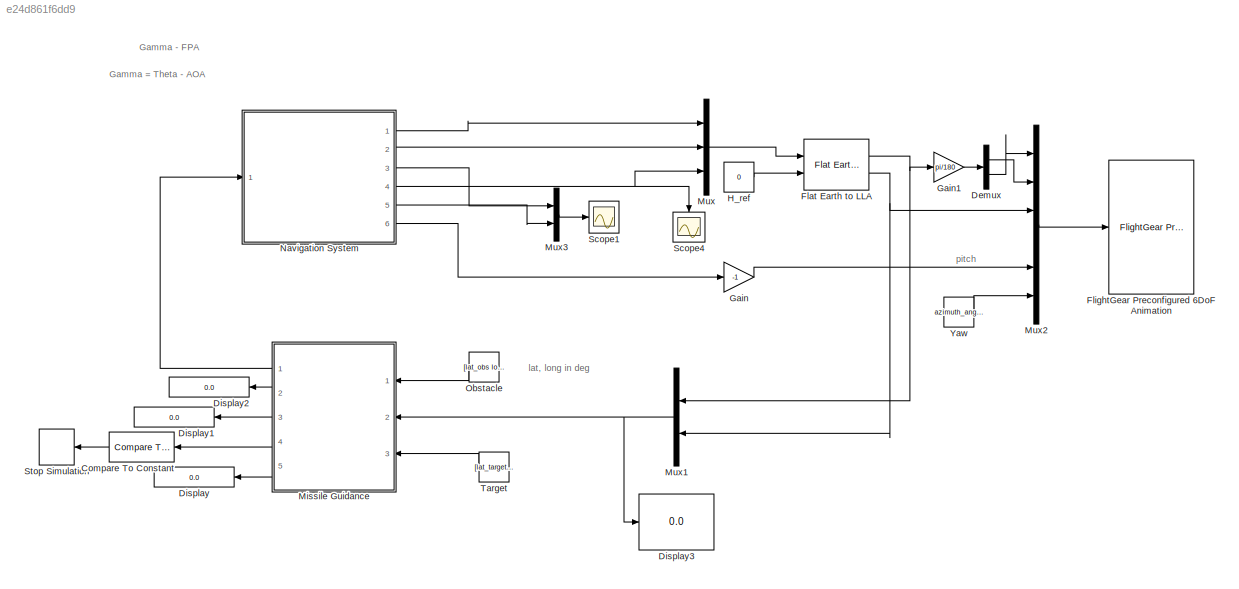
MODEL slx_e24d861f6dd9
KIND model
CONFIG AbsTol = auto
CONFIG EnableMultiTasking = off
CONFIG FixedStep = auto
CONFIG MaxStep = auto
CONFIG MinStep = auto
CONFIG RelTol = 1e-3
CONFIG SampleTimeConstraint = Unconstrained
CONFIG SolverName = VariableStepAuto
CONFIG StartTime = 0.0
CONFIG StopTime = 100
BLOCK [Reference] Compare To Constant  REF=simulink/Logic and Bit
Operations/Compare
To Constant
  NameLocation = top
  Ports = [1, 1]
  SourceBlock = simulink/Logic and Bit\nOperations/Compare\nTo Constant
  SourceProductBaseCode = SL
  SourceType = Compare To Constant
BLOCK [Demux] Demux
  Outputs = 2
  Ports = [1, 2]
BLOCK [Display] Display
  Decimation = 1
  NameLocation = top
  Ports = [1]
BLOCK [Display] Display1
  Decimation = 1
  NameLocation = top
  Ports = [1]
BLOCK [Display] Display2
  Decimation = 1
  NameLocation = top
  Ports = [1]
BLOCK [Display] Display3
  Decimation = 1
  Ports = [1]
BLOCK [Reference] Flat Earth to LLA  REF=aerolibtransform2/Flat Earth to LLA
  Ports = [2, 2]
  SourceBlock = aerolibtransform2/Flat Earth to LLA
  SourceProductBaseCode = AE
  SourceType = Flat Earth to LLA
BLOCK [Reference] FlightGear Preconfigured 6DoF Animation  REF=aerolibfltsims/FlightGear
Preconfigured
6DoF Animation
  Ports = [1]
  SourceBlock = aerolibfltsims/FlightGear\nPreconfigured\n6DoF Animation
  SourceProductBaseCode = AE
  SourceType = FlightGearQuick6DoFAnimation
BLOCK [Gain] Gain
  Gain = -1
BLOCK [Gain] Gain1
  Gain = pi/180
BLOCK [Constant] H_ref
  Value = 0
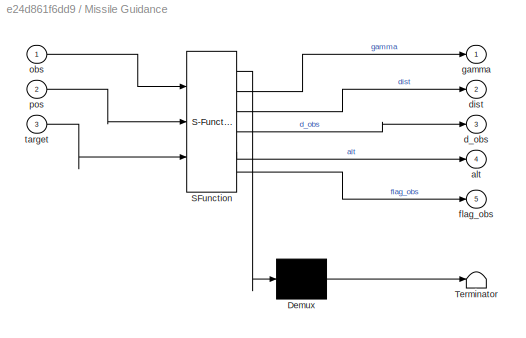
BLOCK [SubSystem] Missile Guidance
  ErrorFcn = Stateflow.Translate.translate
  PermitHierarchicalResolution = ExplicitOnly
  Ports = [3, 5]
  RequestExecContextInheritance = off
  SFBlockType = MATLAB Function
  TreatAsAtomicUnit = on
BLOCK [Demux] Missile Guidance/ Demux 
  Outputs = 1
  Ports = [1, 1]
BLOCK [S-Function] Missile Guidance/ SFunction 
  EnableBusSupport = on
  FunctionName = sf_sfun
  PortCounts = [3 6]
  Ports = [3, 6]
  SFcnIsStateOwnerBlock = off
  SFunctionDeploymentMode = off
  Tag = Stateflow S-Function 2
BLOCK [Terminator] Missile Guidance/ Terminator 
BLOCK [Outport] Missile Guidance/alt
  Port = 4
BLOCK [Outport] Missile Guidance/d_obs
  Port = 3
BLOCK [Outport] Missile Guidance/dist
  Port = 2
BLOCK [Outport] Missile Guidance/flag_obs
  Port = 5
BLOCK [Outport] Missile Guidance/gamma
BLOCK [Inport] Missile Guidance/obs
BLOCK [Inport] Missile Guidance/pos
  Port = 2
BLOCK [Inport] Missile Guidance/target
  Port = 3
BLOCK [Mux] Mux
  DisplayOption = bar
  Inputs = 3
  Ports = [3, 1]
BLOCK [Mux] Mux1
  DisplayOption = bar
  Inputs = 2
  NameLocation = top
  Ports = [2, 1]
BLOCK [Mux] Mux2
  DisplayOption = bar
  Inputs = 6
  Ports = [6, 1]
BLOCK [Mux] Mux3
  DisplayOption = bar
  Inputs = 2
  Ports = [2, 1]
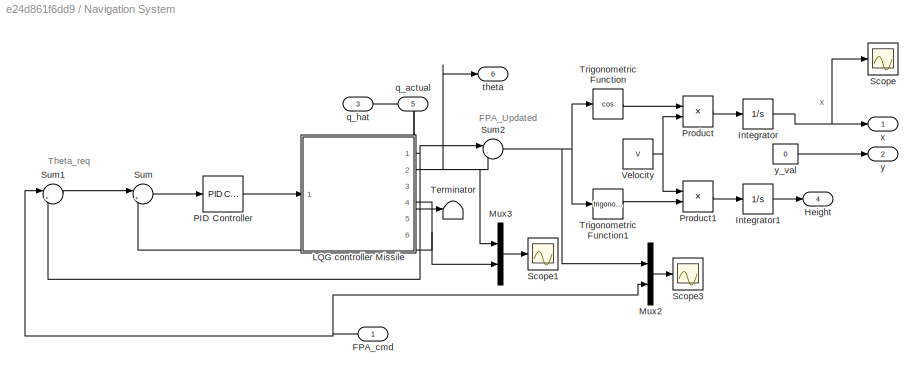
BLOCK [SubSystem] Navigation System
  Ports = [1, 6]
  RequestExecContextInheritance = off
BLOCK [Inport] Navigation System/FPA_cmd
BLOCK [Outport] Navigation System/Height
  Port = 4
BLOCK [Integrator] Navigation System/Integrator
  Ports = [1, 1]
BLOCK [Integrator] Navigation System/Integrator1
  InitialCondition = -elev_init
  Ports = [1, 1]
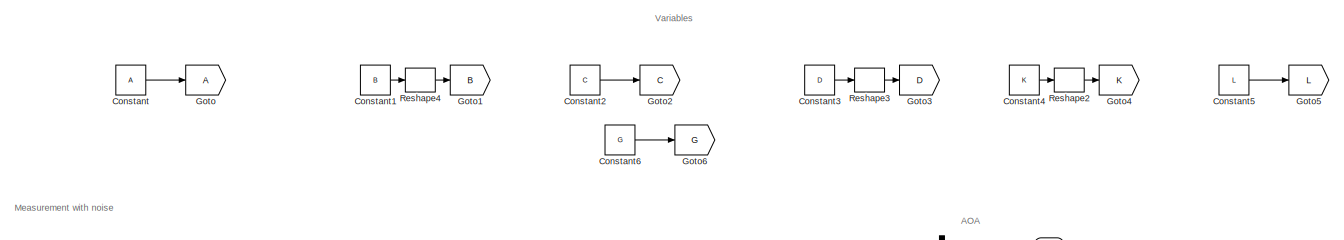
[diagram: Navigation System/LQG controller Missile - part 1/4, full width, top band]
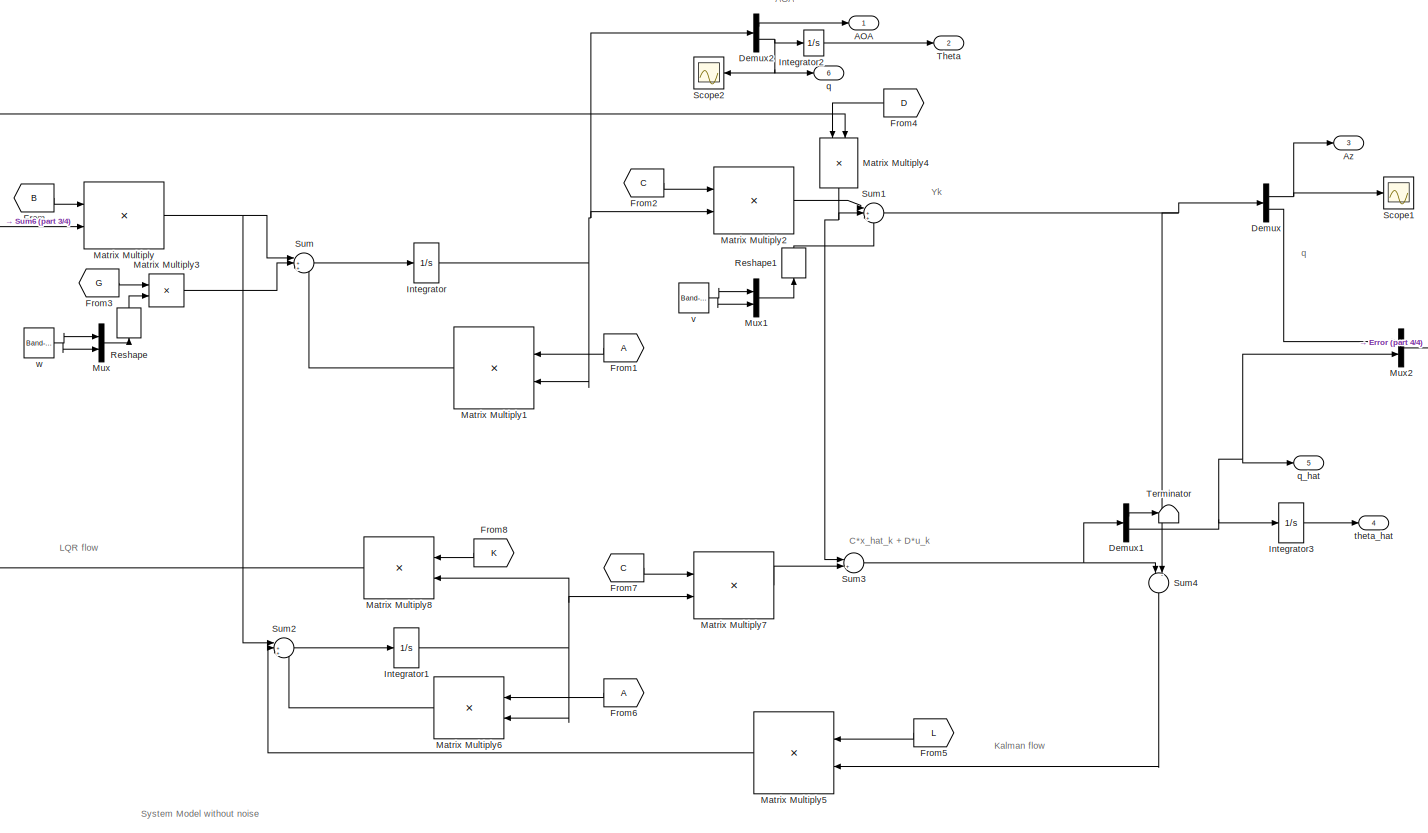
[diagram: Navigation System/LQG controller Missile - part 2/4, most of the canvas]
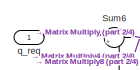
[diagram: Navigation System/LQG controller Missile - part 3/4, middle left region]
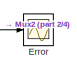
[diagram: Navigation System/LQG controller Missile - part 4/4, middle right region]
BLOCK [SubSystem] Navigation System/LQG controller Missile
  PortSchema = {"entries":[{"content":{"sides":[{"content":{"connectorIds":["In1"]},"type":"ConnectorPlacement.EquallySpacedRectSide","uuid":"9b3f02f4-0603-4cb6-b2b8-26cc0ebf33cc"},{"content":{"connectorIds":["Out1","Out2","Out3","Out4"],"side":"RIGHT"},"type":"ConnectorPlacement.EquallySpacedRectSide","uuid":"37295306-7835-4e5a-ae3e-021ba3432403"},{"content":{"connectorIds":["Out5","Out6"],"side":"TOP"},"type":...<+418ch>
  Ports = [1, 6]
  RequestExecContextInheritance = off
BLOCK [Outport] Navigation System/LQG controller Missile/AOA
  NameLocation = right
BLOCK [Outport] Navigation System/LQG controller Missile/Az
  NameLocation = right
  Port = 3
BLOCK [Constant] Navigation System/LQG controller Missile/Constant
  Value = A
BLOCK [Constant] Navigation System/LQG controller Missile/Constant1
  Value = B
BLOCK [Constant] Navigation System/LQG controller Missile/Constant2
  Value = C
BLOCK [Constant] Navigation System/LQG controller Missile/Constant3
  Value = D
BLOCK [Constant] Navigation System/LQG controller Missile/Constant4
  Value = K
BLOCK [Constant] Navigation System/LQG controller Missile/Constant5
  Value = L
BLOCK [Constant] Navigation System/LQG controller Missile/Constant6
  Value = G
BLOCK [Demux] Navigation System/LQG controller Missile/Demux
  Outputs = 2
  Ports = [1, 2]
BLOCK [Demux] Navigation System/LQG controller Missile/Demux1
  Outputs = 2
  Ports = [1, 2]
BLOCK [Demux] Navigation System/LQG controller Missile/Demux2
  Outputs = 2
  Ports = [1, 2]
BLOCK [Scope] Navigation System/LQG controller Missile/Error
  Floating = off
  NumInputPorts = 1
  Ports = [1]
  ScopeSpecificationString = Simulink.scopes.TimeScopeBlockCfg('CurrentConfiguration', extmgr.ConfigurationSet(extmgr.Configuration('Core','General UI',true),extmgr.Configuration('Core','Source UI',true),extmgr.Configuration('Sources','WiredSimulink',true),extmgr.Configuration('Visuals','Time Domain',true,'SerializedDisplays',{struct('MinYLimReal','-1.16364','MaxYLimReal','1.24074','YLabelReal','','MinYLimMag','0.00000','MaxY...<+1412ch>
BLOCK [From] Navigation System/LQG controller Missile/From
  GotoTag = B
BLOCK [From] Navigation System/LQG controller Missile/From1
  NameLocation = top
BLOCK [From] Navigation System/LQG controller Missile/From2
  GotoTag = C
BLOCK [From] Navigation System/LQG controller Missile/From3
  GotoTag = G
BLOCK [From] Navigation System/LQG controller Missile/From4
  GotoTag = D
  NameLocation = top
BLOCK [From] Navigation System/LQG controller Missile/From5
  GotoTag = L
  NameLocation = top
BLOCK [From] Navigation System/LQG controller Missile/From6
  NameLocation = top
BLOCK [From] Navigation System/LQG controller Missile/From7
  GotoTag = C
BLOCK [From] Navigation System/LQG controller Missile/From8
  GotoTag = K
  NameLocation = top
BLOCK [Goto] Navigation System/LQG controller Missile/Goto
BLOCK [Goto] Navigation System/LQG controller Missile/Goto1
  GotoTag = B
BLOCK [Goto] Navigation System/LQG controller Missile/Goto2
  GotoTag = C
BLOCK [Goto] Navigation System/LQG controller Missile/Goto3
  GotoTag = D
BLOCK [Goto] Navigation System/LQG controller Missile/Goto4
  GotoTag = K
BLOCK [Goto] Navigation System/LQG controller Missile/Goto5
  GotoTag = L
BLOCK [Goto] Navigation System/LQG controller Missile/Goto6
  GotoTag = G
BLOCK [Integrator] Navigation System/LQG controller Missile/Integrator
  Ports = [1, 1]
BLOCK [Integrator] Navigation System/LQG controller Missile/Integrator1
  Ports = [1, 1]
BLOCK [Integrator] Navigation System/LQG controller Missile/Integrator2
  Ports = [1, 1]
BLOCK [Integrator] Navigation System/LQG controller Missile/Integrator3
  Ports = [1, 1]
BLOCK [Product] Navigation System/LQG controller Missile/Matrix Multiply
  Multiplication = Matrix(*)
  Ports = [2, 1]
BLOCK [Product] Navigation System/LQG controller Missile/Matrix Multiply1
  Multiplication = Matrix(*)
  NameLocation = top
  Ports = [2, 1]
BLOCK [Product] Navigation System/LQG controller Missile/Matrix Multiply2
  Multiplication = Matrix(*)
  Ports = [2, 1]
BLOCK [Product] Navigation System/LQG controller Missile/Matrix Multiply3
  Multiplication = Matrix(*)
  Ports = [2, 1]
BLOCK [Product] Navigation System/LQG controller Missile/Matrix Multiply4
  Multiplication = Matrix(*)
  NameLocation = left
  Ports = [2, 1]
BLOCK [Product] Navigation System/LQG controller Missile/Matrix Multiply5
  Multiplication = Matrix(*)
  NameLocation = top
  Ports = [2, 1]
BLOCK [Product] Navigation System/LQG controller Missile/Matrix Multiply6
  Multiplication = Matrix(*)
  NameLocation = top
  Ports = [2, 1]
BLOCK [Product] Navigation System/LQG controller Missile/Matrix Multiply7
  Multiplication = Matrix(*)
  Ports = [2, 1]
BLOCK [Product] Navigation System/LQG controller Missile/Matrix Multiply8
  Multiplication = Matrix(*)
  NameLocation = top
  Ports = [2, 1]
BLOCK [Mux] Navigation System/LQG controller Missile/Mux
  DisplayOption = bar
  Inputs = length(G(1,:))
  Ports = [2, 1]
BLOCK [Mux] Navigation System/LQG controller Missile/Mux1
  DisplayOption = bar
  Inputs = length(G(1,:))
  Ports = [2, 1]
BLOCK [Mux] Navigation System/LQG controller Missile/Mux2
  DisplayOption = bar
  Inputs = length(G(1,:))
  Ports = [2, 1]
BLOCK [Reshape] Navigation System/LQG controller Missile/Reshape
  NameLocation = right
  Ports = [1, 1]
BLOCK [Reshape] Navigation System/LQG controller Missile/Reshape1
  NameLocation = right
  OutputDimensionality = Column vector (2-D)
  Ports = [1, 1]
BLOCK [Reshape] Navigation System/LQG controller Missile/Reshape2
  OutputDimensionality = Customize
  OutputDimensions = [1,2]
  Ports = [1, 1]
BLOCK [Reshape] Navigation System/LQG controller Missile/Reshape3
  OutputDimensionality = Customize
  OutputDimensions = [2,1]
  Ports = [1, 1]
BLOCK [Reshape] Navigation System/LQG controller Missile/Reshape4
  OutputDimensionality = Customize
  OutputDimensions = [2,1]
  Ports = [1, 1]
BLOCK [Scope] Navigation System/LQG controller Missile/Scope1
  Floating = off
  NumInputPorts = 1
  Ports = [1]
  ScopeSpecificationString = Simulink.scopes.TimeScopeBlockCfg('CurrentConfiguration', extmgr.ConfigurationSet(extmgr.Configuration('Core','General UI',true),extmgr.Configuration('Core','Source UI',true),extmgr.Configuration('Sources','WiredSimulink',true,'DataLoggingVariableName','ScopeData1'),extmgr.Configuration('Visuals','Time Domain',true,'SerializedDisplays',{struct('MinYLimReal','-65.6504','MaxYLimReal','16.43907','YLa...<+1439ch>
BLOCK [Scope] Navigation System/LQG controller Missile/Scope2
  Floating = off
  NameLocation = top
  NumInputPorts = 1
  Ports = [1]
  ScopeSpecificationString = Simulink.scopes.TimeScopeBlockCfg('CurrentConfiguration', extmgr.ConfigurationSet(extmgr.Configuration('Core','General UI',true),extmgr.Configuration('Core','Source UI',true),extmgr.Configuration('Sources','WiredSimulink',true,'DataLoggingVariableName','ScopeData6'),extmgr.Configuration('Visuals','Time Domain',true,'SerializedDisplays',{struct('MinYLimReal','-0.2489','MaxYLimReal','0.85674','YLabe...<+1436ch>
BLOCK [Sum] Navigation System/LQG controller Missile/Sum
  Inputs = |+++
  Ports = [3, 1]
BLOCK [Sum] Navigation System/LQG controller Missile/Sum1
  Inputs = |+++
  Ports = [3, 1]
BLOCK [Sum] Navigation System/LQG controller Missile/Sum2
  Inputs = |+++
  Ports = [3, 1]
BLOCK [Sum] Navigation System/LQG controller Missile/Sum3
  Inputs = |++
  Ports = [2, 1]
BLOCK [Sum] Navigation System/LQG controller Missile/Sum4
  Inputs = |-+
  NameLocation = left
  Ports = [2, 1]
BLOCK [Sum] Navigation System/LQG controller Missile/Sum6
  Inputs = |+-
  Ports = [2, 1]
BLOCK [Terminator] Navigation System/LQG controller Missile/Terminator
BLOCK [Outport] Navigation System/LQG controller Missile/Theta
  NameLocation = right
  Port = 2
BLOCK [Outport] Navigation System/LQG controller Missile/q
  NameLocation = right
  Port = 6
BLOCK [Outport] Navigation System/LQG controller Missile/q_hat
  NameLocation = right
  Port = 5
BLOCK [Inport] Navigation System/LQG controller Missile/q_req
BLOCK [Outport] Navigation System/LQG controller Missile/theta_hat
  NameLocation = right
  Port = 4
BLOCK [Reference] Navigation System/LQG controller Missile/v  REF=simulink/Sources/Band-Limited
White Noise
  Ports = [0, 1]
  SourceBlock = simulink/Sources/Band-Limited\nWhite Noise
  SourceProductBaseCode = SL
  SourceType = Band-Limited White Noise.
BLOCK [Reference] Navigation System/LQG controller Missile/w  REF=simulink/Sources/Band-Limited
White Noise
  Ports = [0, 1]
  SourceBlock = simulink/Sources/Band-Limited\nWhite Noise
  SourceProductBaseCode = SL
  SourceType = Band-Limited White Noise.
BLOCK [Mux] Navigation System/Mux2
  DisplayOption = bar
  Inputs = 2
  Ports = [2, 1]
BLOCK [Mux] Navigation System/Mux3
  DisplayOption = bar
  Inputs = 2
  Ports = [2, 1]
BLOCK [Reference] Navigation System/PID Controller  REF=pid_lib/PID Controller
  Ports = [1, 1]
  SourceBlock = pid_lib/PID Controller
  SourceProductBaseCode = SL
  SourceType = PID 1dof
BLOCK [Product] Navigation System/Product
  Ports = [2, 1]
BLOCK [Product] Navigation System/Product1
  Ports = [2, 1]
BLOCK [Scope] Navigation System/Scope
  Floating = off
  NumInputPorts = 1
  Ports = [1]
  ScopeSpecificationString = Simulink.scopes.TimeScopeBlockCfg('CurrentConfiguration', extmgr.ConfigurationSet(extmgr.Configuration('Core','General UI',true),extmgr.Configuration('Core','Source UI',true),extmgr.Configuration('Sources','WiredSimulink',true,'DataLoggingVariableName','ScopeData1'),extmgr.Configuration('Visuals','Time Domain',true,'SerializedDisplays',{struct('MinYLimReal','-9977.70784','MaxYLimReal','89799.37056...<+1395ch>
BLOCK [Scope] Navigation System/Scope1
  Floating = off
  NumInputPorts = 1
  Ports = [1]
  ScopeSpecificationString = Simulink.scopes.TimeScopeBlockCfg('CurrentConfiguration', extmgr.ConfigurationSet(extmgr.Configuration('Core','General UI',true),extmgr.Configuration('Core','Source UI',true),extmgr.Configuration('Sources','WiredSimulink',true,'DataLoggingVariableName','ScopeData1'),extmgr.Configuration('Visuals','Time Domain',true,'SerializedDisplays',{struct('MinYLimReal','-0.01641','MaxYLimReal','0.1461','YLabe...<+1600ch>
BLOCK [Scope] Navigation System/Scope3
  Floating = off
  NumInputPorts = 1
  Ports = [1]
  ScopeSpecificationString = Simulink.scopes.TimeScopeBlockCfg('CurrentConfiguration', extmgr.ConfigurationSet(extmgr.Configuration('Core','General UI',true),extmgr.Configuration('Core','Source UI',true),extmgr.Configuration('Sources','WiredSimulink',true,'DataLoggingVariableName','ScopeData4'),extmgr.Configuration('Visuals','Time Domain',true,'SerializedDisplays',{struct('MinYLimReal','-0.01641','MaxYLimReal','0.1461','YLabe...<+1558ch>
BLOCK [Sum] Navigation System/Sum
  Inputs = |+-
  Ports = [2, 1]
BLOCK [Sum] Navigation System/Sum1
  Inputs = |++
  Ports = [2, 1]
BLOCK [Sum] Navigation System/Sum2
  Inputs = |-+
  Ports = [2, 1]
BLOCK [Terminator] Navigation System/Terminator
BLOCK [Trigonometry] Navigation System/Trigonometric Function
  Operator = cos
  Ports = [1, 1]
BLOCK [Trigonometry] Navigation System/Trigonometric Function1
  Ports = [1, 1]
BLOCK [Constant] Navigation System/Velocity
  Value = V
BLOCK [Outport] Navigation System/q_actual
  Port = 5
BLOCK [Outport] Navigation System/q_hat
  Port = 3
BLOCK [Outport] Navigation System/theta
  Port = 6
BLOCK [Outport] Navigation System/x
BLOCK [Outport] Navigation System/y
  Port = 2
BLOCK [Constant] Navigation System/y_val
  Value = 0
BLOCK [Constant] Obstacle
  Value = [lat_obs long_obs]
BLOCK [Scope] Scope1
  Floating = off
  NameLocation = right
  NumInputPorts = 1
  Ports = [1]
  ScopeSpecificationString = Simulink.scopes.TimeScopeBlockCfg('CurrentConfiguration', extmgr.ConfigurationSet(extmgr.Configuration('Core','General UI',true),extmgr.Configuration('Core','Source UI',true),extmgr.Configuration('Sources','WiredSimulink',true,'DataLoggingVariableName','ScopeData3'),extmgr.Configuration('Visuals','Time Domain',true,'SerializedDisplays',{struct('MinYLimReal','-0.15444','MaxYLimReal','1.04593','YLab...<+1589ch>
BLOCK [Scope] Scope4
  Floating = off
  NumInputPorts = 1
  Ports = [1]
  ScopeSpecificationString = Simulink.scopes.TimeScopeBlockCfg('CurrentConfiguration', extmgr.ConfigurationSet(extmgr.Configuration('Core','General UI',true),extmgr.Configuration('Core','Source UI',true),extmgr.Configuration('Sources','WiredSimulink',true,'DataLoggingVariableName','ScopeData2'),extmgr.Configuration('Visuals','Time Domain',true,'SerializedDisplays',{struct('MinYLimReal','-10475.6814','MaxYLimReal','-5719.01953...<+1599ch>
BLOCK [Stop] Stop Simulation
BLOCK [Constant] Target
  Value = [lat_target long_target elev_target]
BLOCK [Constant] Yaw
  Value = azimuth_ang*pi/180
ANNOTATION (root): Gamma - FPA
ANNOTATION (root): Gamma = Theta - AOA
ANNOTATION (root): lat, long in deg
ANNOTATION (root): pitch
ANNOTATION Navigation System: FPA_Updated
ANNOTATION Navigation System: Theta_req
ANNOTATION Navigation System: x
ANNOTATION Navigation System/LQG controller Missile: Variables
ANNOTATION Navigation System/LQG controller Missile: Measurement with noise
ANNOTATION Navigation System/LQG controller Missile: System Model without noise
ANNOTATION Navigation System/LQG controller Missile: AOA
ANNOTATION Navigation System/LQG controller Missile: C*x_hat_k + D*u_k
ANNOTATION Navigation System/LQG controller Missile: Kalman flow
ANNOTATION Navigation System/LQG controller Missile: LQR flow
ANNOTATION Navigation System/LQG controller Missile: Yk
ANNOTATION Navigation System/LQG controller Missile: q
LINE Compare To Constant:1 -> Stop Simulation:1
LINE Demux:1 -> Mux2:2
LINE Demux:2 -> Mux2:1
NET Flat Earth to LLA:1 -> Gain1:1, Mux1:1
NET Flat Earth to LLA:2 -> Mux1:2, Mux2:3
LINE Gain1:1 -> Demux:1
LINE Gain:1 -> Mux2:5
LINE H_ref:1 -> Flat Earth to LLA:2
LINE Missile Guidance:1 -> Navigation System:1
LINE Missile Guidance:2 -> Display2:1
LINE Missile Guidance:3 -> Display1:1
LINE Missile Guidance:4 -> Compare To Constant:1
LINE Missile Guidance:5 -> Display:1
NET Mux1:1 -> Display3:1, Missile Guidance:2
LINE Mux2:1 -> FlightGear Preconfigured 6DoF Animation:1
LINE Mux3:1 -> Scope1:1
LINE Mux:1 -> Flat Earth to LLA:1
NET Navigation System/FPA_cmd:1 -> Navigation System/Mux2:2, Navigation System/Sum1:1
LINE Navigation System/Integrator1:1 -> Navigation System/Height:1
NET Navigation System/Integrator:1 -> Navigation System/Scope:1, Navigation System/x:1
LINE Navigation System/LQG controller Missile/Constant1:1 -> Navigation System/LQG controller Missile/Reshape4:1
LINE Navigation System/LQG controller Missile/Constant2:1 -> Navigation System/LQG controller Missile/Goto2:1
LINE Navigation System/LQG controller Missile/Constant3:1 -> Navigation System/LQG controller Missile/Reshape3:1
LINE Navigation System/LQG controller Missile/Constant4:1 -> Navigation System/LQG controller Missile/Reshape2:1
LINE Navigation System/LQG controller Missile/Constant5:1 -> Navigation System/LQG controller Missile/Goto5:1
LINE Navigation System/LQG controller Missile/Constant6:1 -> Navigation System/LQG controller Missile/Goto6:1
LINE Navigation System/LQG controller Missile/Constant:1 -> Navigation System/LQG controller Missile/Goto:1
LINE Navigation System/LQG controller Missile/Demux1:1 -> Navigation System/LQG controller Missile/Terminator:1
NET Navigation System/LQG controller Missile/Demux1:2 -> Navigation System/LQG controller Missile/Integrator3:1, Navigation System/LQG controller Missile/Mux2:2, Navigation System/LQG controller Missile/q_hat:1
LINE Navigation System/LQG controller Missile/Demux2:1 -> Navigation System/LQG controller Missile/AOA:1
NET Navigation System/LQG controller Missile/Demux2:2 -> Navigation System/LQG controller Missile/Integrator2:1, Navigation System/LQG controller Missile/Scope2:1, Navigation System/LQG controller Missile/q:1
NET Navigation System/LQG controller Missile/Demux:1 -> Navigation System/LQG controller Missile/Az:1, Navigation System/LQG controller Missile/Scope1:1
LINE Navigation System/LQG controller Missile/Demux:2 -> Navigation System/LQG controller Missile/Mux2:1
LINE Navigation System/LQG controller Missile/From1:1 -> Navigation System/LQG controller Missile/Matrix Multiply1:1
LINE Navigation System/LQG controller Missile/From2:1 -> Navigation System/LQG controller Missile/Matrix Multiply2:1
LINE Navigation System/LQG controller Missile/From3:1 -> Navigation System/LQG controller Missile/Matrix Multiply3:1
LINE Navigation System/LQG controller Missile/From4:1 -> Navigation System/LQG controller Missile/Matrix Multiply4:1
LINE Navigation System/LQG controller Missile/From5:1 -> Navigation System/LQG controller Missile/Matrix Multiply5:1
LINE Navigation System/LQG controller Missile/From6:1 -> Navigation System/LQG controller Missile/Matrix Multiply6:1
LINE Navigation System/LQG controller Missile/From7:1 -> Navigation System/LQG controller Missile/Matrix Multiply7:1
LINE Navigation System/LQG controller Missile/From8:1 -> Navigation System/LQG controller Missile/Matrix Multiply8:1
LINE Navigation System/LQG controller Missile/From:1 -> Navigation System/LQG controller Missile/Matrix Multiply:1
NET Navigation System/LQG controller Missile/Integrator1:1 -> Navigation System/LQG controller Missile/Matrix Multiply6:2, Navigation System/LQG controller Missile/Matrix Multiply7:2, Navigation System/LQG controller Missile/Matrix Multiply8:2
LINE Navigation System/LQG controller Missile/Integrator2:1 -> Navigation System/LQG controller Missile/Theta:1
LINE Navigation System/LQG controller Missile/Integrator3:1 -> Navigation System/LQG controller Missile/theta_hat:1
NET Navigation System/LQG controller Missile/Integrator:1 -> Navigation System/LQG controller Missile/Demux2:1, Navigation System/LQG controller Missile/Matrix Multiply1:2, Navigation System/LQG controller Missile/Matrix Multiply2:2
LINE Navigation System/LQG controller Missile/Matrix Multiply1:1 -> Navigation System/LQG controller Missile/Sum:3
LINE Navigation System/LQG controller Missile/Matrix Multiply2:1 -> Navigation System/LQG controller Missile/Sum1:1
LINE Navigation System/LQG controller Missile/Matrix Multiply3:1 -> Navigation System/LQG controller Missile/Sum:2
NET Navigation System/LQG controller Missile/Matrix Multiply4:1 -> Navigation System/LQG controller Missile/Sum1:2, Navigation System/LQG controller Missile/Sum3:1
LINE Navigation System/LQG controller Missile/Matrix Multiply5:1 -> Navigation System/LQG controller Missile/Sum2:2
LINE Navigation System/LQG controller Missile/Matrix Multiply6:1 -> Navigation System/LQG controller Missile/Sum2:3
LINE Navigation System/LQG controller Missile/Matrix Multiply7:1 -> Navigation System/LQG controller Missile/Sum3:2
LINE Navigation System/LQG controller Missile/Matrix Multiply8:1 -> Navigation System/LQG controller Missile/Sum6:2
NET Navigation System/LQG controller Missile/Matrix Multiply:1 -> Navigation System/LQG controller Missile/Sum2:1, Navigation System/LQG controller Missile/Sum:1
LINE Navigation System/LQG controller Missile/Mux1:1 -> Navigation System/LQG controller Missile/Reshape1:1
LINE Navigation System/LQG controller Missile/Mux2:1 -> Navigation System/LQG controller Missile/Error:1
LINE Navigation System/LQG controller Missile/Mux:1 -> Navigation System/LQG controller Missile/Reshape:1
LINE Navigation System/LQG controller Missile/Reshape1:1 -> Navigation System/LQG controller Missile/Sum1:3
LINE Navigation System/LQG controller Missile/Reshape2:1 -> Navigation System/LQG controller Missile/Goto4:1
LINE Navigation System/LQG controller Missile/Reshape3:1 -> Navigation System/LQG controller Missile/Goto3:1
LINE Navigation System/LQG controller Missile/Reshape4:1 -> Navigation System/LQG controller Missile/Goto1:1
LINE Navigation System/LQG controller Missile/Reshape:1 -> Navigation System/LQG controller Missile/Matrix Multiply3:2
NET Navigation System/LQG controller Missile/Sum1:1 -> Navigation System/LQG controller Missile/Demux:1, Navigation System/LQG controller Missile/Sum4:2
LINE Navigation System/LQG controller Missile/Sum2:1 -> Navigation System/LQG controller Missile/Integrator1:1
NET Navigation System/LQG controller Missile/Sum3:1 -> Navigation System/LQG controller Missile/Demux1:1, Navigation System/LQG controller Missile/Sum4:1
LINE Navigation System/LQG controller Missile/Sum4:1 -> Navigation System/LQG controller Missile/Matrix Multiply5:2
NET Navigation System/LQG controller Missile/Sum6:1 -> Navigation System/LQG controller Missile/Matrix Multiply4:2, Navigation System/LQG controller Missile/Matrix Multiply:2
LINE Navigation System/LQG controller Missile/Sum:1 -> Navigation System/LQG controller Missile/Integrator:1
LINE Navigation System/LQG controller Missile/q_req:1 -> Navigation System/LQG controller Missile/Sum6:1
NET Navigation System/LQG controller Missile/v:1 -> Navigation System/LQG controller Missile/Mux1:1, Navigation System/LQG controller Missile/Mux1:2
NET Navigation System/LQG controller Missile/w:1 -> Navigation System/LQG controller Missile/Mux:1, Navigation System/LQG controller Missile/Mux:2
NET Navigation System/LQG controller Missile:1 -> Navigation System/Sum1:2, Navigation System/Sum2:1
NET Navigation System/LQG controller Missile:2 -> Navigation System/Mux3:1, Navigation System/Sum2:2, Navigation System/theta:1
LINE Navigation System/LQG controller Missile:3 -> Navigation System/Terminator:1
NET Navigation System/LQG controller Missile:4 -> Navigation System/Mux3:2, Navigation System/Sum:2
LINE Navigation System/LQG controller Missile:5 -> Navigation System/q_hat:1
LINE Navigation System/LQG controller Missile:6 -> Navigation System/q_actual:1
LINE Navigation System/Mux2:1 -> Navigation System/Scope3:1
LINE Navigation System/Mux3:1 -> Navigation System/Scope1:1
LINE Navigation System/PID Controller:1 -> Navigation System/LQG controller Missile:1
LINE Navigation System/Product1:1 -> Navigation System/Integrator1:1
LINE Navigation System/Product:1 -> Navigation System/Integrator:1
LINE Navigation System/Sum1:1 -> Navigation System/Sum:1
NET Navigation System/Sum2:1 -> Navigation System/Mux2:1, Navigation System/Trigonometric Function1:1, Navigation System/Trigonometric Function:1
LINE Navigation System/Sum:1 -> Navigation System/PID Controller:1
LINE Navigation System/Trigonometric Function1:1 -> Navigation System/Product1:2
LINE Navigation System/Trigonometric Function:1 -> Navigation System/Product:1
NET Navigation System/Velocity:1 -> Navigation System/Product1:1, Navigation System/Product:2
LINE Navigation System/y_val:1 -> Navigation System/y:1
LINE Navigation System:1 -> Mux:1
LINE Navigation System:2 -> Mux:2
LINE Navigation System:3 -> Mux3:1
NET Navigation System:4 -> Mux:3, Scope4:1
LINE Navigation System:5 -> Mux3:2
LINE Navigation System:6 -> Gain:1
LINE Obstacle:1 -> Missile Guidance:1
LINE Target:1 -> Missile Guidance:3
LINE Yaw:1 -> Mux2:6
note: NET lines group one-source signal fan-out (src -> all destinations, sorted); 1:1 wires keep LINE
CHART Missile Guidance states=1 transitions=1
  STATE_LABEL 'eML_blk_kernel()'
  STATE_LABEL 'SCRIPT:\nfunction [gamma, dist, d_obs, alt, flag_obs] = fcn(obs, pos, target)\n\nR = 6400e3;\nobs_thres = 3500;  % 3.5km obstacle length threshold\ndeg_rad = pi/180;\n\nd_lat = target(1) - pos(1)*deg_rad;\nd_long = target(2) - pos(2)*deg_rad;\ndh = abs(pos(3)-target(3));\n\nhaversine = sin(d_lat/2)^2 + cos(target(1))*cos(pos(1)*deg_rad)*sin(d_long/2)^2;\nd = 2*R*atan2(sqrt(haversine), sqrt(1-haversine));\ndist...<+378ch>'
CHART  states=0 transitions=0
